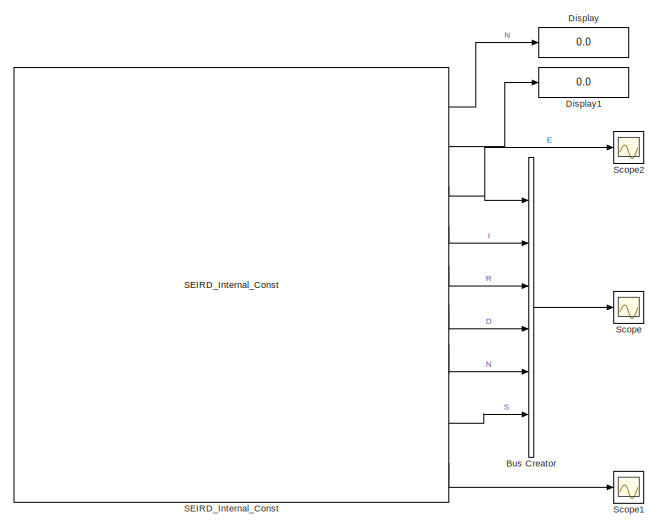
[diagram: root canvas - part 1/3, top left region]
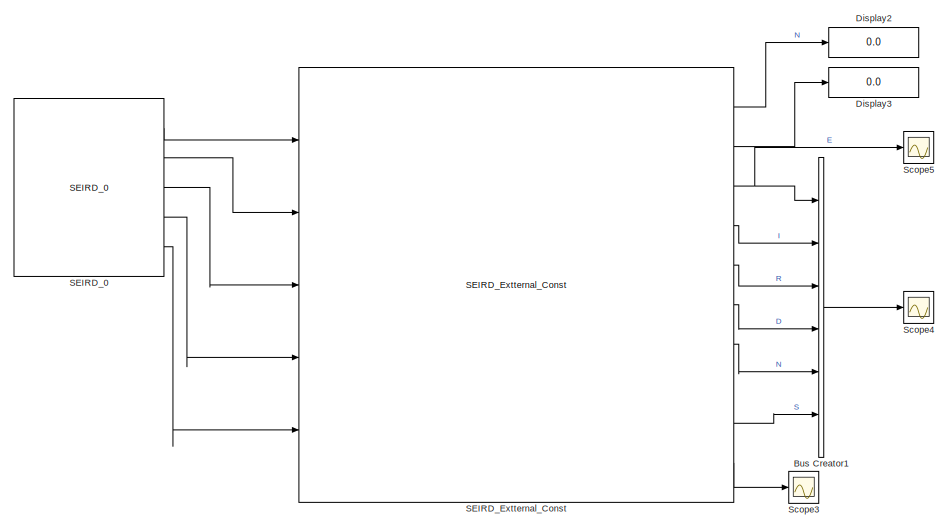
[diagram: root canvas - part 2/3, top right region]
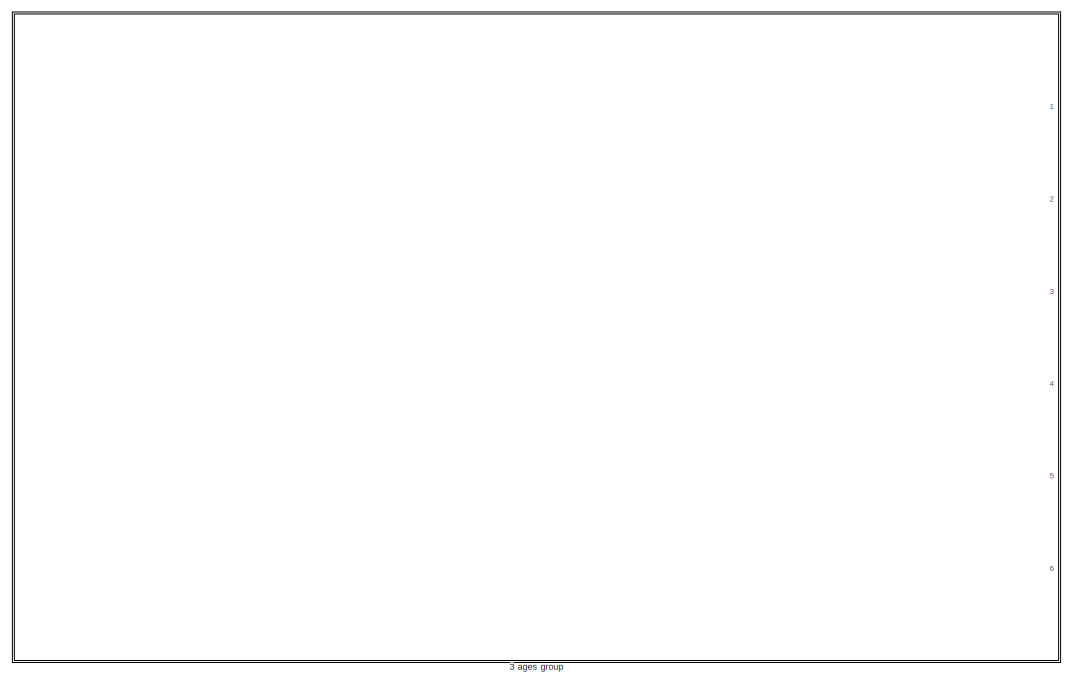
[diagram: root canvas - part 3/3, bottom left region]
MODEL slx_079e24084610
KIND model
CONFIG AbsTol = auto
CONFIG EnableMultiTasking = off
CONFIG FixedStep = 1/24
CONFIG MaxStep = auto
CONFIG MinStep = auto
CONFIG RelTol = 1e-12
CONFIG SampleTimeConstraint = Unconstrained
CONFIG Solver = VariableStepAuto
CONFIG SolverName = VariableStepAuto
CONFIG StartTime = 0.0
CONFIG StopTime = 365*2
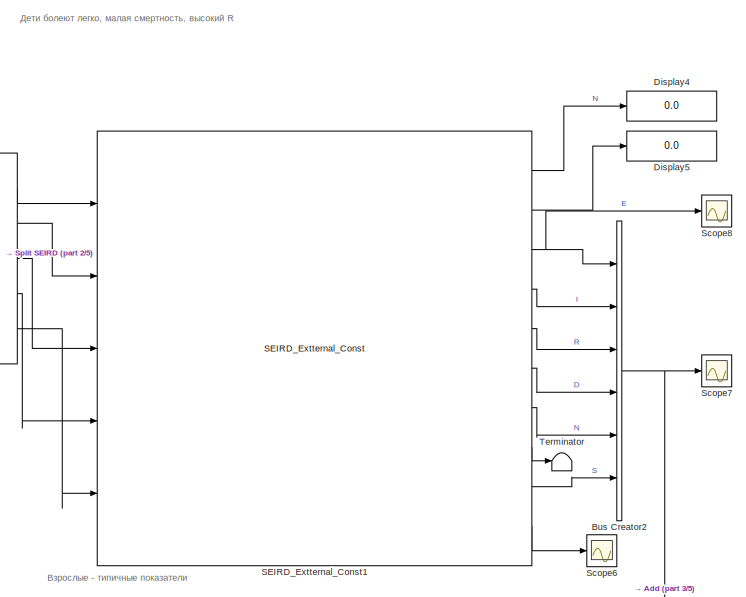
[diagram: 3 ages group - part 1/5, top center region]
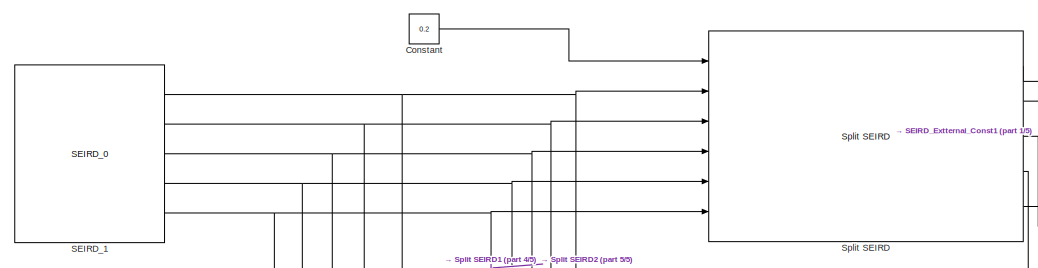
[diagram: 3 ages group - part 2/5, top left region]
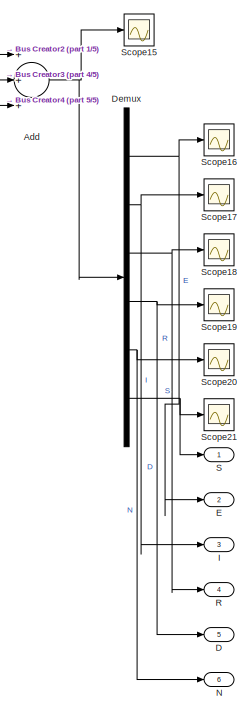
[diagram: 3 ages group - part 3/5, middle right region]
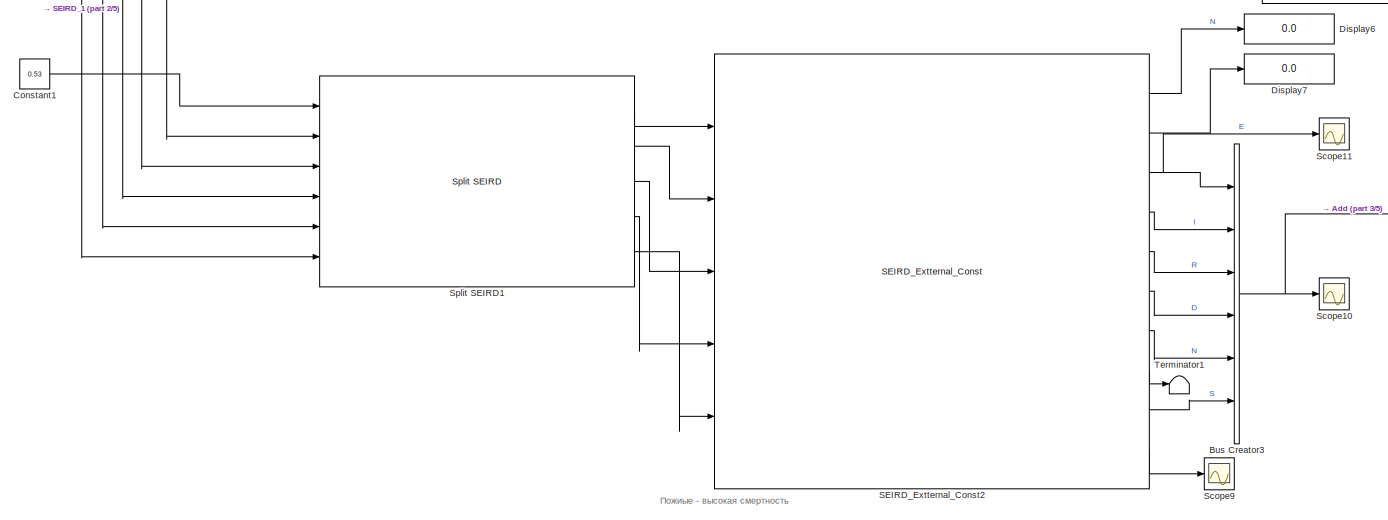
[diagram: 3 ages group - part 4/5, central region]
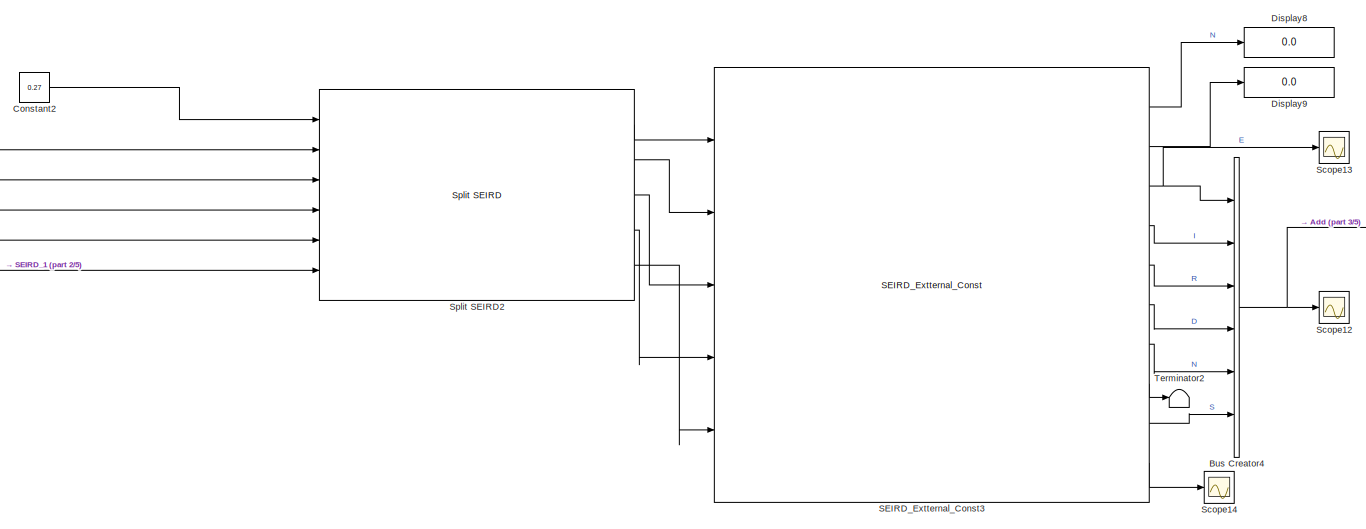
[diagram: 3 ages group - part 5/5, bottom center region]
BLOCK [SubSystem] 3 ages group
  Ports = [0, 6]
  RequestExecContextInheritance = off
BLOCK [Sum] 3 ages group/Add
  InputSameDT = off
  Inputs = +++
  OutDataTypeStr = Inherit: Inherit via internal rule
  Ports = [3, 1]
  SaturateOnIntegerOverflow = off
BLOCK [BusCreator] 3 ages group/Bus Creator2
  DisplayOption = bar
  InheritFromInputs = on
  Inputs = 6
  Ports = [6, 1]
BLOCK [BusCreator] 3 ages group/Bus Creator3
  DisplayOption = bar
  InheritFromInputs = on
  Inputs = 6
  Ports = [6, 1]
BLOCK [BusCreator] 3 ages group/Bus Creator4
  DisplayOption = bar
  InheritFromInputs = on
  Inputs = 6
  Ports = [6, 1]
BLOCK [Constant] 3 ages group/Constant
  Value = 0.2
BLOCK [Constant] 3 ages group/Constant1
  Value = 0.53
BLOCK [Constant] 3 ages group/Constant2
  Value = 0.27
BLOCK [Outport] 3 ages group/D
  IconDisplay = Port number
  Port = 5
BLOCK [Demux] 3 ages group/Demux
  DisplayOption = bar
  Outputs = 6
  Ports = [1, 6]
BLOCK [Display] 3 ages group/Display4
  Decimation = 1
  Ports = [1]
BLOCK [Display] 3 ages group/Display5
  Decimation = 1
  Ports = [1]
BLOCK [Display] 3 ages group/Display6
  Decimation = 1
  Ports = [1]
BLOCK [Display] 3 ages group/Display7
  Decimation = 1
  Ports = [1]
BLOCK [Display] 3 ages group/Display8
  Decimation = 1
  Ports = [1]
BLOCK [Display] 3 ages group/Display9
  Decimation = 1
  Ports = [1]
BLOCK [Outport] 3 ages group/E
  IconDisplay = Port number
  Port = 2
BLOCK [Outport] 3 ages group/I
  IconDisplay = Port number
  Port = 3
BLOCK [Outport] 3 ages group/N
  IconDisplay = Port number
  Port = 6
BLOCK [Outport] 3 ages group/R
  IconDisplay = Port number
  Port = 4
BLOCK [Outport] 3 ages group/S
  IconDisplay = Port number
BLOCK [Reference] 3 ages group/SEIRD_1  REF=SEIR_Lib/SEIRD_0
  Ports = [0, 5]
  SourceBlock = SEIR_Lib/SEIRD_0
  SourceType = SubSystem
BLOCK [Reference] 3 ages group/SEIRD_Extternal_Const1  REF=SEIR_Lib/SEIRD_Extternal_Const
  Ports = [5, 10]
  SourceBlock = SEIR_Lib/SEIRD_Extternal_Const
  SourceType = SubSystem
BLOCK [Reference] 3 ages group/SEIRD_Extternal_Const2  REF=SEIR_Lib/SEIRD_Extternal_Const
  Ports = [5, 10]
  SourceBlock = SEIR_Lib/SEIRD_Extternal_Const
  SourceType = SubSystem
BLOCK [Reference] 3 ages group/SEIRD_Extternal_Const3  REF=SEIR_Lib/SEIRD_Extternal_Const
  Ports = [5, 10]
  SourceBlock = SEIR_Lib/SEIRD_Extternal_Const
  SourceType = SubSystem
BLOCK [Scope] 3 ages group/Scope10
  Floating = off
  NumInputPorts = 1
  Ports = [1]
  ScopeSpecificationString = Simulink.scopes.TimeScopeBlockCfg('CurrentConfiguration', extmgr.ConfigurationSet(extmgr.Configuration('Core','General UI',true),extmgr.Configuration('Core','Source UI',true),extmgr.Configuration('Sources','WiredSimulink',true,'DataLoggingVariableName','ScopeData9'),extmgr.Configuration('Visuals','Time Domain',true,'SerializedDisplays',{struct('MinYLimReal','-9738763.25','MaxYLimReal','87648869.25...<+1510ch>
BLOCK [Scope] 3 ages group/Scope11
  Floating = off
  NumInputPorts = 1
  Ports = [1]
  ScopeSpecificationString = Simulink.scopes.TimeScopeBlockCfg('CurrentConfiguration', extmgr.ConfigurationSet(extmgr.Configuration('Core','General UI',true),extmgr.Configuration('Core','Source UI',true),extmgr.Configuration('Sources','WiredSimulink',true,'DataLoggingVariableName','ScopeData10'),extmgr.Configuration('Visuals','Time Domain',true,'SerializedDisplays',{struct('MinYLimReal','-170400.19677','MaxYLimReal','1533601....<+1474ch>
BLOCK [Scope] 3 ages group/Scope12
  Floating = off
  NumInputPorts = 1
  Ports = [1]
  ScopeSpecificationString = Simulink.scopes.TimeScopeBlockCfg('CurrentConfiguration', extmgr.ConfigurationSet(extmgr.Configuration('Core','General UI',true),extmgr.Configuration('Core','Source UI',true),extmgr.Configuration('Sources','WiredSimulink',true,'DataLoggingVariableName','ScopeData12'),extmgr.Configuration('Visuals','Time Domain',true,'SerializedDisplays',{struct('MinYLimReal','-6125008.33333','MaxYLimReal','5512507...<+1530ch>
BLOCK [Scope] 3 ages group/Scope13
  Floating = off
  NumInputPorts = 1
  Ports = [1]
  ScopeSpecificationString = Simulink.scopes.TimeScopeBlockCfg('CurrentConfiguration', extmgr.ConfigurationSet(extmgr.Configuration('Core','General UI',true),extmgr.Configuration('Core','Source UI',true),extmgr.Configuration('Sources','WiredSimulink',true,'DataLoggingVariableName','ScopeData13'),extmgr.Configuration('Visuals','Time Domain',true,'SerializedDisplays',{struct('MinYLimReal','-86807.64741','MaxYLimReal','781268.82...<+1466ch>
BLOCK [Scope] 3 ages group/Scope14
  Floating = off
  NumInputPorts = 1
  Ports = [1]
  ScopeSpecificationString = Simulink.scopes.TimeScopeBlockCfg('CurrentConfiguration', extmgr.ConfigurationSet(extmgr.Configuration('Core','General UI',true),extmgr.Configuration('Core','Source UI',true),extmgr.Configuration('Sources','WiredSimulink',true,'DataLoggingVariableName','ScopeData14'),extmgr.Configuration('Visuals','Time Domain',true,'SerializedDisplays',{struct('MinYLimReal','0.74197','MaxYLimReal','2.22231','YLab...<+1480ch>
BLOCK [Scope] 3 ages group/Scope15
  Floating = off
  NumInputPorts = 1
  Ports = [1]
  ScopeSpecificationString = Simulink.scopes.TimeScopeBlockCfg('CurrentConfiguration', extmgr.ConfigurationSet(extmgr.Configuration('Core','General UI',true),extmgr.Configuration('Core','Source UI',true),extmgr.Configuration('Sources','WiredSimulink',true,'DataLoggingVariableName','ScopeData15'),extmgr.Configuration('Visuals','Time Domain',true,'SerializedDisplays',{struct('MinYLimReal','-18375025.00000','MaxYLimReal','165375...<+1535ch>
BLOCK [Scope] 3 ages group/Scope16
  Floating = off
  NumInputPorts = 1
  Ports = [1]
  ScopeSpecificationString = Simulink.scopes.TimeScopeBlockCfg('CurrentConfiguration', extmgr.ConfigurationSet(extmgr.Configuration('Core','General UI',true),extmgr.Configuration('Core','Source UI',true),extmgr.Configuration('Sources','WiredSimulink',true,'DataLoggingVariableName','ScopeData16'),extmgr.Configuration('Visuals','Time Domain',true,'SerializedDisplays',{struct('MinYLimReal','-209766.43949','MaxYLimReal','1887897....<+1475ch>
BLOCK [Scope] 3 ages group/Scope17
  Floating = off
  NumInputPorts = 1
  Ports = [1]
  ScopeSpecificationString = Simulink.scopes.TimeScopeBlockCfg('CurrentConfiguration', extmgr.ConfigurationSet(extmgr.Configuration('Core','General UI',true),extmgr.Configuration('Core','Source UI',true),extmgr.Configuration('Sources','WiredSimulink',true,'DataLoggingVariableName','ScopeData17'),extmgr.Configuration('Visuals','Time Domain',true,'SerializedDisplays',{struct('MinYLimReal','-2309059.44521','MaxYLimReal','2078153...<+1483ch>
BLOCK [Scope] 3 ages group/Scope18
  Floating = off
  NumInputPorts = 1
  Ports = [1]
  ScopeSpecificationString = Simulink.scopes.TimeScopeBlockCfg('CurrentConfiguration', extmgr.ConfigurationSet(extmgr.Configuration('Core','General UI',true),extmgr.Configuration('Core','Source UI',true),extmgr.Configuration('Sources','WiredSimulink',true,'DataLoggingVariableName','ScopeData18'),extmgr.Configuration('Visuals','Time Domain',true,'SerializedDisplays',{struct('MinYLimReal','-13438901.8729','MaxYLimReal','1209501...<+1489ch>
BLOCK [Scope] 3 ages group/Scope19
  Floating = off
  NumInputPorts = 1
  Ports = [1]
  ScopeSpecificationString = Simulink.scopes.TimeScopeBlockCfg('CurrentConfiguration', extmgr.ConfigurationSet(extmgr.Configuration('Core','General UI',true),extmgr.Configuration('Core','Source UI',true),extmgr.Configuration('Sources','WiredSimulink',true,'DataLoggingVariableName','ScopeData19'),extmgr.Configuration('Visuals','Time Domain',true,'SerializedDisplays',{struct('MinYLimReal','-1076738.44462','MaxYLimReal','9690646...<+1479ch>
BLOCK [Scope] 3 ages group/Scope20
  Floating = off
  NumInputPorts = 1
  Ports = [1]
  ScopeSpecificationString = Simulink.scopes.TimeScopeBlockCfg('CurrentConfiguration', extmgr.ConfigurationSet(extmgr.Configuration('Core','General UI',true),extmgr.Configuration('Core','Source UI',true),extmgr.Configuration('Sources','WiredSimulink',true,'DataLoggingVariableName','ScopeData20'),extmgr.Configuration('Visuals','Time Domain',true,'SerializedDisplays',{struct('MinYLimReal','137309553.99844','MaxYLimReal','148076...<+1495ch>
BLOCK [Scope] 3 ages group/Scope21
  Floating = off
  NumInputPorts = 1
  Ports = [1]
  ScopeSpecificationString = Simulink.scopes.TimeScopeBlockCfg('CurrentConfiguration', extmgr.ConfigurationSet(extmgr.Configuration('Core','General UI',true),extmgr.Configuration('Core','Source UI',true),extmgr.Configuration('Sources','WiredSimulink',true,'DataLoggingVariableName','ScopeData21'),extmgr.Configuration('Visuals','Time Domain',true,'SerializedDisplays',{struct('MinYLimReal','35933248.56631','MaxYLimReal','1593407...<+1487ch>
BLOCK [Scope] 3 ages group/Scope6
  Floating = off
  NumInputPorts = 1
  Ports = [1]
  ScopeSpecificationString = Simulink.scopes.TimeScopeBlockCfg('CurrentConfiguration', extmgr.ConfigurationSet(extmgr.Configuration('Core','General UI',true),extmgr.Configuration('Core','Source UI',true),extmgr.Configuration('Sources','WiredSimulink',true,'DataLoggingVariableName','ScopeData6'),extmgr.Configuration('Visuals','Time Domain',true,'SerializedDisplays',{struct('MinYLimReal','0.74197','MaxYLimReal','2.22231','YLabe...<+1479ch>
BLOCK [Scope] 3 ages group/Scope7
  Floating = off
  NumInputPorts = 1
  Ports = [1]
  ScopeSpecificationString = Simulink.scopes.TimeScopeBlockCfg('CurrentConfiguration', extmgr.ConfigurationSet(extmgr.Configuration('Core','General UI',true),extmgr.Configuration('Core','Source UI',true),extmgr.Configuration('Sources','WiredSimulink',true,'DataLoggingVariableName','ScopeData7'),extmgr.Configuration('Visuals','Time Domain',true,'SerializedDisplays',{struct('MinYLimReal','-3675005.00000','MaxYLimReal','33075045...<+1529ch>
BLOCK [Scope] 3 ages group/Scope8
  Floating = off
  NumInputPorts = 1
  Ports = [1]
  ScopeSpecificationString = Simulink.scopes.TimeScopeBlockCfg('CurrentConfiguration', extmgr.ConfigurationSet(extmgr.Configuration('Core','General UI',true),extmgr.Configuration('Core','Source UI',true),extmgr.Configuration('Sources','WiredSimulink',true,'DataLoggingVariableName','ScopeData8'),extmgr.Configuration('Visuals','Time Domain',true,'SerializedDisplays',{struct('MinYLimReal','-64301.96105','MaxYLimReal','578717.649...<+1465ch>
BLOCK [Scope] 3 ages group/Scope9
  Floating = off
  NumInputPorts = 1
  Ports = [1]
  ScopeSpecificationString = Simulink.scopes.TimeScopeBlockCfg('CurrentConfiguration', extmgr.ConfigurationSet(extmgr.Configuration('Core','General UI',true),extmgr.Configuration('Core','Source UI',true),extmgr.Configuration('Sources','WiredSimulink',true,'DataLoggingVariableName','ScopeData11'),extmgr.Configuration('Visuals','Time Domain',true,'SerializedDisplays',{struct('MinYLimReal','0.74197','MaxYLimReal','2.22231','YLab...<+1480ch>
BLOCK [Reference] 3 ages group/Split SEIRD  REF=SEIR_Lib/Split SEIRD
  Ports = [6, 5]
  SourceBlock = SEIR_Lib/Split SEIRD
  SourceType = SubSystem
BLOCK [Reference] 3 ages group/Split SEIRD1  REF=SEIR_Lib/Split SEIRD
  Ports = [6, 5]
  SourceBlock = SEIR_Lib/Split SEIRD
  SourceType = SubSystem
BLOCK [Reference] 3 ages group/Split SEIRD2  REF=SEIR_Lib/Split SEIRD
  Ports = [6, 5]
  SourceBlock = SEIR_Lib/Split SEIRD
  SourceType = SubSystem
BLOCK [Terminator] 3 ages group/Terminator
BLOCK [Terminator] 3 ages group/Terminator1
BLOCK [Terminator] 3 ages group/Terminator2
BLOCK [BusCreator] Bus Creator
  DisplayOption = bar
  InheritFromInputs = on
  Inputs = 6
  Ports = [6, 1]
BLOCK [BusCreator] Bus Creator1
  DisplayOption = bar
  InheritFromInputs = on
  Inputs = 6
  Ports = [6, 1]
BLOCK [Display] Display
  Decimation = 1
  Ports = [1]
BLOCK [Display] Display1
  Decimation = 1
  Ports = [1]
BLOCK [Display] Display2
  Decimation = 1
  Ports = [1]
BLOCK [Display] Display3
  Decimation = 1
  Ports = [1]
BLOCK [Reference] SEIRD_0  REF=SEIR_Lib/SEIRD_0
  Ports = [0, 5]
  SourceBlock = SEIR_Lib/SEIRD_0
  SourceType = SubSystem
BLOCK [Reference] SEIRD_Extternal_Const  REF=SEIR_Lib/SEIRD_Extternal_Const
  Ports = [5, 10]
  SourceBlock = SEIR_Lib/SEIRD_Extternal_Const
  SourceType = SubSystem
BLOCK [Reference] SEIRD_Internal_Const  REF=SEIR_Lib/SEIRD_Internal_Const
  Ports = [0, 10]
  SourceBlock = SEIR_Lib/SEIRD_Internal_Const
  SourceType = SubSystem
BLOCK [Scope] Scope
  Floating = off
  NumInputPorts = 1
  Ports = [1]
  ScopeSpecificationString = Simulink.scopes.TimeScopeBlockCfg('CurrentConfiguration', extmgr.ConfigurationSet(extmgr.Configuration('Core','General UI',true),extmgr.Configuration('Core','Source UI',true),extmgr.Configuration('Sources','WiredSimulink',true),extmgr.Configuration('Visuals','Time Domain',true,'SerializedDisplays',{struct('MinYLimReal','-18375025.00000','MaxYLimReal','165375225.00000','YLabelReal','','MinYLimMag',...<+1471ch>
BLOCK [Scope] Scope1
  Floating = off
  NumInputPorts = 1
  Ports = [1]
  ScopeSpecificationString = Simulink.scopes.TimeScopeBlockCfg('CurrentConfiguration', extmgr.ConfigurationSet(extmgr.Configuration('Core','General UI',true),extmgr.Configuration('Core','Source UI',true),extmgr.Configuration('Sources','WiredSimulink',true,'DataLoggingVariableName','ScopeData1'),extmgr.Configuration('Visuals','Time Domain',true,'SerializedDisplays',{struct('MinYLimReal','0.74199','MaxYLimReal','2.22231','YLabe...<+1452ch>
BLOCK [Scope] Scope2
  Floating = off
  NumInputPorts = 1
  Ports = [1]
  ScopeSpecificationString = Simulink.scopes.TimeScopeBlockCfg('CurrentConfiguration', extmgr.ConfigurationSet(extmgr.Configuration('Core','General UI',true),extmgr.Configuration('Core','Source UI',true),extmgr.Configuration('Sources','WiredSimulink',true,'DataLoggingVariableName','ScopeData2'),extmgr.Configuration('Visuals','Time Domain',true,'SerializedDisplays',{struct('MinYLimReal','-321509.80523','MaxYLimReal','2893588.2...<+1473ch>
BLOCK [Scope] Scope3
  Floating = off
  NumInputPorts = 1
  Ports = [1]
  ScopeSpecificationString = Simulink.scopes.TimeScopeBlockCfg('CurrentConfiguration', extmgr.ConfigurationSet(extmgr.Configuration('Core','General UI',true),extmgr.Configuration('Core','Source UI',true),extmgr.Configuration('Sources','WiredSimulink',true,'DataLoggingVariableName','ScopeData3'),extmgr.Configuration('Visuals','Time Domain',true,'SerializedDisplays',{struct('MinYLimReal','0.74197','MaxYLimReal','2.22231','YLabe...<+1453ch>
BLOCK [Scope] Scope4
  Floating = off
  NumInputPorts = 1
  Ports = [1]
  ScopeSpecificationString = Simulink.scopes.TimeScopeBlockCfg('CurrentConfiguration', extmgr.ConfigurationSet(extmgr.Configuration('Core','General UI',true),extmgr.Configuration('Core','Source UI',true),extmgr.Configuration('Sources','WiredSimulink',true,'DataLoggingVariableName','ScopeData4'),extmgr.Configuration('Visuals','Time Domain',true,'SerializedDisplays',{struct('MinYLimReal','-18375025.00000','MaxYLimReal','1653752...<+1510ch>
BLOCK [Scope] Scope5
  Floating = off
  NumInputPorts = 1
  Ports = [1]
  ScopeSpecificationString = Simulink.scopes.TimeScopeBlockCfg('CurrentConfiguration', extmgr.ConfigurationSet(extmgr.Configuration('Core','General UI',true),extmgr.Configuration('Core','Source UI',true),extmgr.Configuration('Sources','WiredSimulink',true,'DataLoggingVariableName','ScopeData5'),extmgr.Configuration('Visuals','Time Domain',true,'SerializedDisplays',{struct('MinYLimReal','-215313.40547','MaxYLimReal','2507819.2...<+1473ch>
ANNOTATION 3 ages group: Взрослые - типичные показатели
ANNOTATION 3 ages group: Дети болеют легко, малая смертность, высокий R
ANNOTATION 3 ages group: Пожиые - высокая смертность
NET 3 ages group/Add:1 -> 3 ages group/Demux:1, 3 ages group/Scope15:1
NET 3 ages group/Bus Creator2:1 -> 3 ages group/Add:1, 3 ages group/Scope7:1
NET 3 ages group/Bus Creator3:1 -> 3 ages group/Add:2, 3 ages group/Scope10:1
NET 3 ages group/Bus Creator4:1 -> 3 ages group/Add:3, 3 ages group/Scope12:1
LINE 3 ages group/Constant1:1 -> 3 ages group/Split SEIRD1:1
LINE 3 ages group/Constant2:1 -> 3 ages group/Split SEIRD2:1
LINE 3 ages group/Constant:1 -> 3 ages group/Split SEIRD:1
NET 3 ages group/Demux:1 -> 3 ages group/E:1, 3 ages group/Scope16:1
NET 3 ages group/Demux:2 -> 3 ages group/I:1, 3 ages group/Scope17:1
NET 3 ages group/Demux:3 -> 3 ages group/R:1, 3 ages group/Scope18:1
NET 3 ages group/Demux:4 -> 3 ages group/D:1, 3 ages group/Scope19:1
NET 3 ages group/Demux:5 -> 3 ages group/N:1, 3 ages group/Scope20:1
NET 3 ages group/Demux:6 -> 3 ages group/S:1, 3 ages group/Scope21:1
NET 3 ages group/SEIRD_1:1 -> 3 ages group/Split SEIRD1:2, 3 ages group/Split SEIRD2:2, 3 ages group/Split SEIRD:2
NET 3 ages group/SEIRD_1:2 -> 3 ages group/Split SEIRD1:3, 3 ages group/Split SEIRD2:3, 3 ages group/Split SEIRD:3
NET 3 ages group/SEIRD_1:3 -> 3 ages group/Split SEIRD1:4, 3 ages group/Split SEIRD2:4, 3 ages group/Split SEIRD:4
NET 3 ages group/SEIRD_1:4 -> 3 ages group/Split SEIRD1:5, 3 ages group/Split SEIRD2:5, 3 ages group/Split SEIRD:5
NET 3 ages group/SEIRD_1:5 -> 3 ages group/Split SEIRD1:6, 3 ages group/Split SEIRD2:6, 3 ages group/Split SEIRD:6
LINE 3 ages group/SEIRD_Extternal_Const1:1 -> 3 ages group/Display4:1
LINE 3 ages group/SEIRD_Extternal_Const1:10 -> 3 ages group/Scope6:1
LINE 3 ages group/SEIRD_Extternal_Const1:2 -> 3 ages group/Display5:1
NET 3 ages group/SEIRD_Extternal_Const1:3 -> 3 ages group/Bus Creator2:1, 3 ages group/Scope8:1
LINE 3 ages group/SEIRD_Extternal_Const1:4 -> 3 ages group/Bus Creator2:2
LINE 3 ages group/SEIRD_Extternal_Const1:5 -> 3 ages group/Bus Creator2:3
LINE 3 ages group/SEIRD_Extternal_Const1:6 -> 3 ages group/Bus Creator2:4
LINE 3 ages group/SEIRD_Extternal_Const1:7 -> 3 ages group/Bus Creator2:5
LINE 3 ages group/SEIRD_Extternal_Const1:8 -> 3 ages group/Terminator:1
LINE 3 ages group/SEIRD_Extternal_Const1:9 -> 3 ages group/Bus Creator2:6
LINE 3 ages group/SEIRD_Extternal_Const2:1 -> 3 ages group/Display6:1
LINE 3 ages group/SEIRD_Extternal_Const2:10 -> 3 ages group/Scope9:1
LINE 3 ages group/SEIRD_Extternal_Const2:2 -> 3 ages group/Display7:1
NET 3 ages group/SEIRD_Extternal_Const2:3 -> 3 ages group/Bus Creator3:1, 3 ages group/Scope11:1
LINE 3 ages group/SEIRD_Extternal_Const2:4 -> 3 ages group/Bus Creator3:2
LINE 3 ages group/SEIRD_Extternal_Const2:5 -> 3 ages group/Bus Creator3:3
LINE 3 ages group/SEIRD_Extternal_Const2:6 -> 3 ages group/Bus Creator3:4
LINE 3 ages group/SEIRD_Extternal_Const2:7 -> 3 ages group/Bus Creator3:5
LINE 3 ages group/SEIRD_Extternal_Const2:8 -> 3 ages group/Terminator1:1
LINE 3 ages group/SEIRD_Extternal_Const2:9 -> 3 ages group/Bus Creator3:6
LINE 3 ages group/SEIRD_Extternal_Const3:1 -> 3 ages group/Display8:1
LINE 3 ages group/SEIRD_Extternal_Const3:10 -> 3 ages group/Scope14:1
LINE 3 ages group/SEIRD_Extternal_Const3:2 -> 3 ages group/Display9:1
NET 3 ages group/SEIRD_Extternal_Const3:3 -> 3 ages group/Bus Creator4:1, 3 ages group/Scope13:1
LINE 3 ages group/SEIRD_Extternal_Const3:4 -> 3 ages group/Bus Creator4:2
LINE 3 ages group/SEIRD_Extternal_Const3:5 -> 3 ages group/Bus Creator4:3
LINE 3 ages group/SEIRD_Extternal_Const3:6 -> 3 ages group/Bus Creator4:4
LINE 3 ages group/SEIRD_Extternal_Const3:7 -> 3 ages group/Bus Creator4:5
LINE 3 ages group/SEIRD_Extternal_Const3:8 -> 3 ages group/Terminator2:1
LINE 3 ages group/SEIRD_Extternal_Const3:9 -> 3 ages group/Bus Creator4:6
LINE 3 ages group/Split SEIRD1:1 -> 3 ages group/SEIRD_Extternal_Const2:1
LINE 3 ages group/Split SEIRD1:2 -> 3 ages group/SEIRD_Extternal_Const2:2
LINE 3 ages group/Split SEIRD1:3 -> 3 ages group/SEIRD_Extternal_Const2:3
LINE 3 ages group/Split SEIRD1:4 -> 3 ages group/SEIRD_Extternal_Const2:4
LINE 3 ages group/Split SEIRD1:5 -> 3 ages group/SEIRD_Extternal_Const2:5
LINE 3 ages group/Split SEIRD2:1 -> 3 ages group/SEIRD_Extternal_Const3:1
LINE 3 ages group/Split SEIRD2:2 -> 3 ages group/SEIRD_Extternal_Const3:2
LINE 3 ages group/Split SEIRD2:3 -> 3 ages group/SEIRD_Extternal_Const3:3
LINE 3 ages group/Split SEIRD2:4 -> 3 ages group/SEIRD_Extternal_Const3:4
LINE 3 ages group/Split SEIRD2:5 -> 3 ages group/SEIRD_Extternal_Const3:5
LINE 3 ages group/Split SEIRD:1 -> 3 ages group/SEIRD_Extternal_Const1:1
LINE 3 ages group/Split SEIRD:2 -> 3 ages group/SEIRD_Extternal_Const1:2
LINE 3 ages group/Split SEIRD:3 -> 3 ages group/SEIRD_Extternal_Const1:3
LINE 3 ages group/Split SEIRD:4 -> 3 ages group/SEIRD_Extternal_Const1:4
LINE 3 ages group/Split SEIRD:5 -> 3 ages group/SEIRD_Extternal_Const1:5
LINE Bus Creator1:1 -> Scope4:1
LINE Bus Creator:1 -> Scope:1
LINE SEIRD_0:1 -> SEIRD_Extternal_Const:1
LINE SEIRD_0:2 -> SEIRD_Extternal_Const:2
LINE SEIRD_0:3 -> SEIRD_Extternal_Const:3
LINE SEIRD_0:4 -> SEIRD_Extternal_Const:4
LINE SEIRD_0:5 -> SEIRD_Extternal_Const:5
LINE SEIRD_Extternal_Const:1 -> Display2:1
LINE SEIRD_Extternal_Const:10 -> Scope3:1
LINE SEIRD_Extternal_Const:2 -> Display3:1
NET SEIRD_Extternal_Const:3 -> Bus Creator1:1, Scope5:1
LINE SEIRD_Extternal_Const:4 -> Bus Creator1:2
LINE SEIRD_Extternal_Const:5 -> Bus Creator1:3
LINE SEIRD_Extternal_Const:6 -> Bus Creator1:4
LINE SEIRD_Extternal_Const:7 -> Bus Creator1:5
LINE SEIRD_Extternal_Const:9 -> Bus Creator1:6
LINE SEIRD_Internal_Const:1 -> Display:1
LINE SEIRD_Internal_Const:10 -> Scope1:1
LINE SEIRD_Internal_Const:2 -> Display1:1
NET SEIRD_Internal_Const:3 -> Bus Creator:1, Scope2:1
LINE SEIRD_Internal_Const:4 -> Bus Creator:2
LINE SEIRD_Internal_Const:5 -> Bus Creator:3
LINE SEIRD_Internal_Const:6 -> Bus Creator:4
LINE SEIRD_Internal_Const:7 -> Bus Creator:5
LINE SEIRD_Internal_Const:9 -> Bus Creator:6
note: NET lines group one-source signal fan-out (src -> all destinations, sorted); 1:1 wires keep LINE
